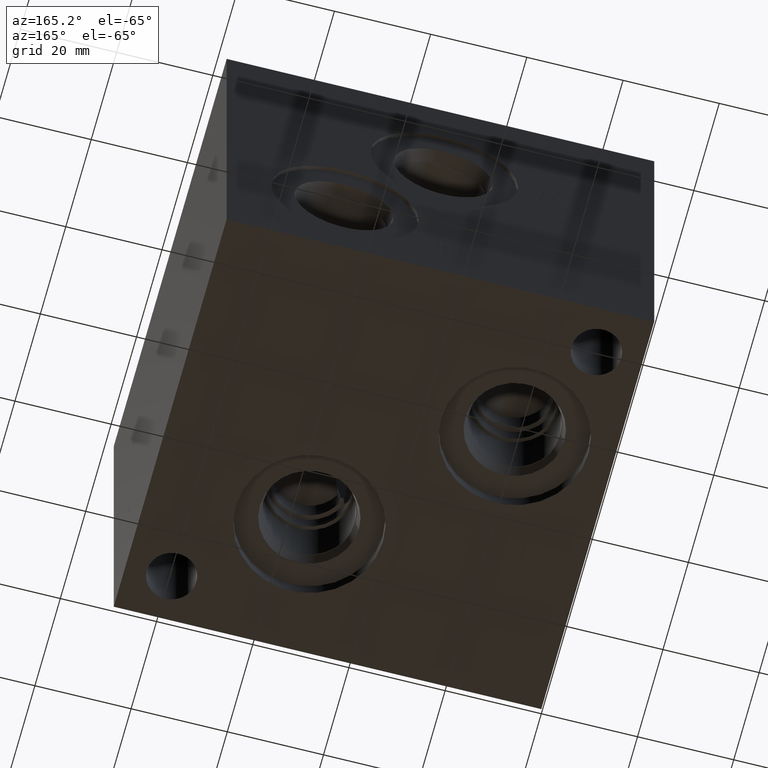
[diagram: clean part render]
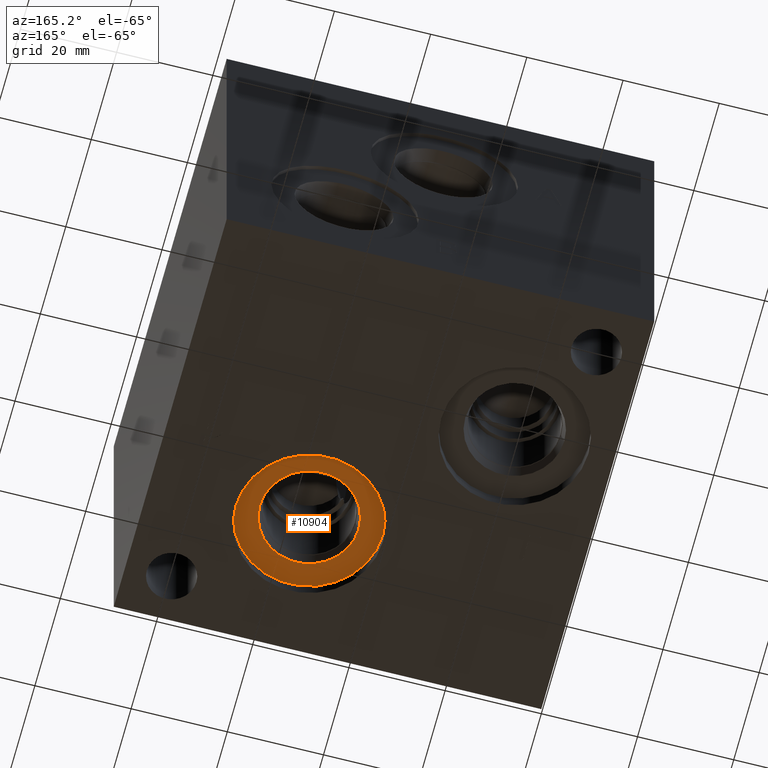
[diagram: same view with one face highlighted and labeled with its STEP entity id]
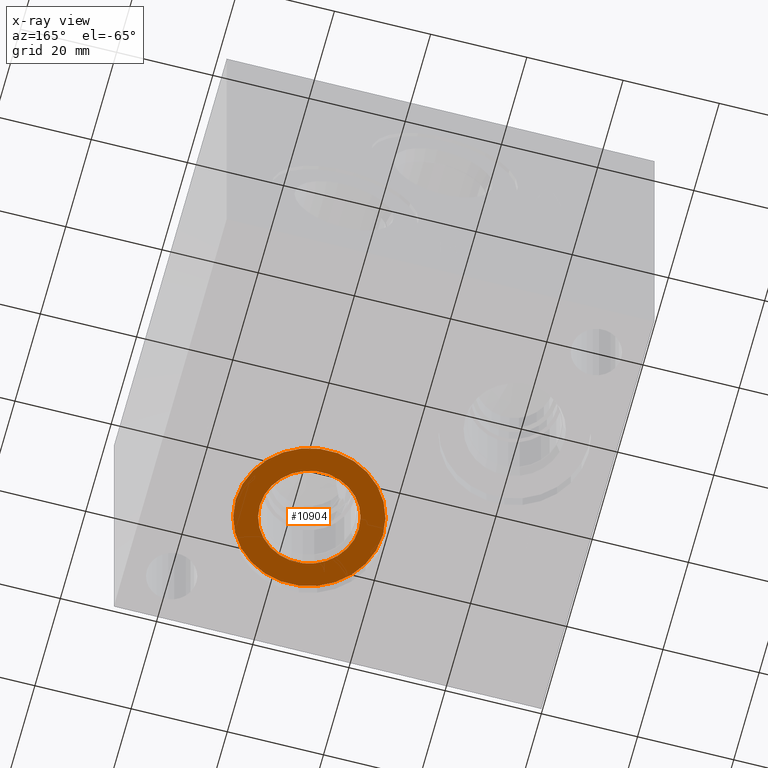
[diagram: x-ray of the same camera — body ghosted, the highlighted face saturated]
A machine part, auxiliary view. The second image highlights one B-rep face of the part: STEP entity #10904.
The next image is the same camera in x-ray: the body ghosted, the highlighted face saturated — about 0% of this face is hidden behind the body in this view.
In plain terms, the highlighted planar face has unit normal (0, 0, 1).
Its self-contained STEP definition (entity closure, byte-faithful):
#119=CIRCLE('',#11337,15.3162);
#120=CIRCLE('',#11338,15.3162);
#121=CIRCLE('',#11340,10.2997);
#122=CIRCLE('',#11341,10.2997);
#351=FACE_BOUND('',#1758,.T.);
#671=PLANE('',#11339);
#1145=FACE_OUTER_BOUND('',#1757,.T.);
#1757=EDGE_LOOP('',(#9268,#9269));
#1758=EDGE_LOOP('',(#9270,#9271));
#5075=VERTEX_POINT('',#18446);
#5076=VERTEX_POINT('',#18448);
#5077=VERTEX_POINT('',#18452);
#5078=VERTEX_POINT('',#18453);
#6525=EDGE_CURVE('',#5075,#5076,#119,.T.);
#6526=EDGE_CURVE('',#5076,#5075,#120,.T.);
#6527=EDGE_CURVE('',#5077,#5078,#121,.T.);
#6528=EDGE_CURVE('',#5078,#5077,#122,.T.);
#9268=ORIENTED_EDGE('',*,*,#6526,.F.);
#9269=ORIENTED_EDGE('',*,*,#6525,.F.);
#9270=ORIENTED_EDGE('',*,*,#6527,.T.);
#9271=ORIENTED_EDGE('',*,*,#6528,.T.);
#10904=ADVANCED_FACE('',(#1145,#351),#671,.F.);
#11337=AXIS2_PLACEMENT_3D('',#18449,#13159,#13160);
#11338=AXIS2_PLACEMENT_3D('',#18450,#13161,#13162);
#11339=AXIS2_PLACEMENT_3D('',#18451,#13163,#13164);
#11340=AXIS2_PLACEMENT_3D('',#18454,#13165,#13166);
#11341=AXIS2_PLACEMENT_3D('',#18455,#13167,#13168);
#13159=DIRECTION('center_axis',(0.,0.,1.));
#13160=DIRECTION('ref_axis',(1.,0.,0.));
#13161=DIRECTION('center_axis',(0.,0.,1.));
#13162=DIRECTION('ref_axis',(1.,0.,0.));
#13163=DIRECTION('center_axis',(0.,0.,1.));
#13164=DIRECTION('ref_axis',(1.,0.,0.));
#13165=DIRECTION('center_axis',(0.,0.,1.));
#13166=DIRECTION('ref_axis',(1.,0.,0.));
#13167=DIRECTION('center_axis',(0.,0.,1.));
#13168=DIRECTION('ref_axis',(1.,0.,0.));
#18446=CARTESIAN_POINT('',(40.259,27.7876,3.175));
#18448=CARTESIAN_POINT('',(70.8914,27.7876,3.175));
#18449=CARTESIAN_POINT('Origin',(55.5752,27.7876,3.175));
#18450=CARTESIAN_POINT('Origin',(55.5752,27.7876,3.175));
#18451=CARTESIAN_POINT('Origin',(65.8749,27.7876,3.175));
#18452=CARTESIAN_POINT('',(65.8749,27.7876,3.175));
#18453=CARTESIAN_POINT('',(45.2755,27.7876,3.175));
#18454=CARTESIAN_POINT('Origin',(55.5752,27.7876,3.175));
#18455=CARTESIAN_POINT('Origin',(55.5752,27.7876,3.175));